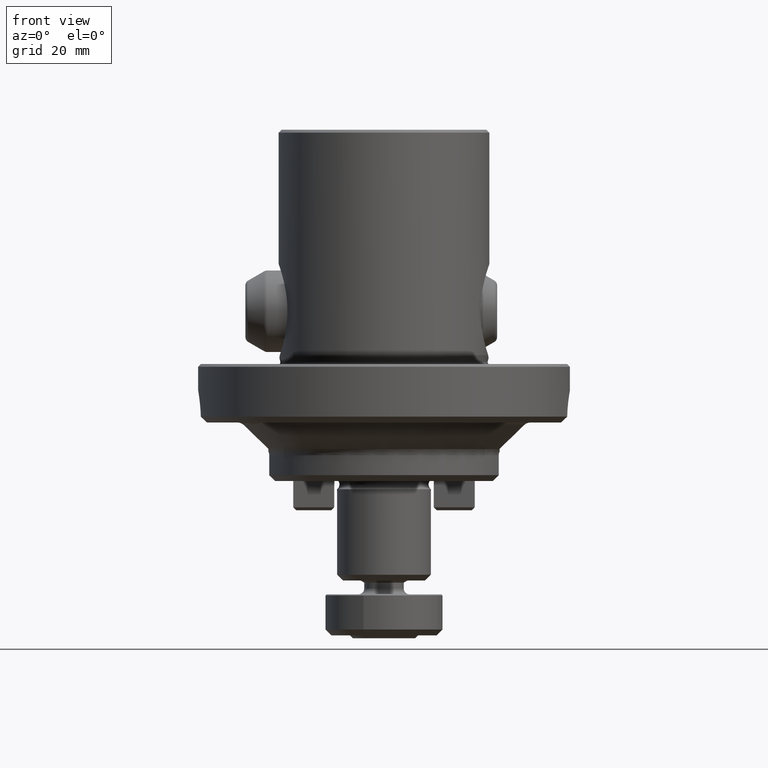
[diagram: clean part render]
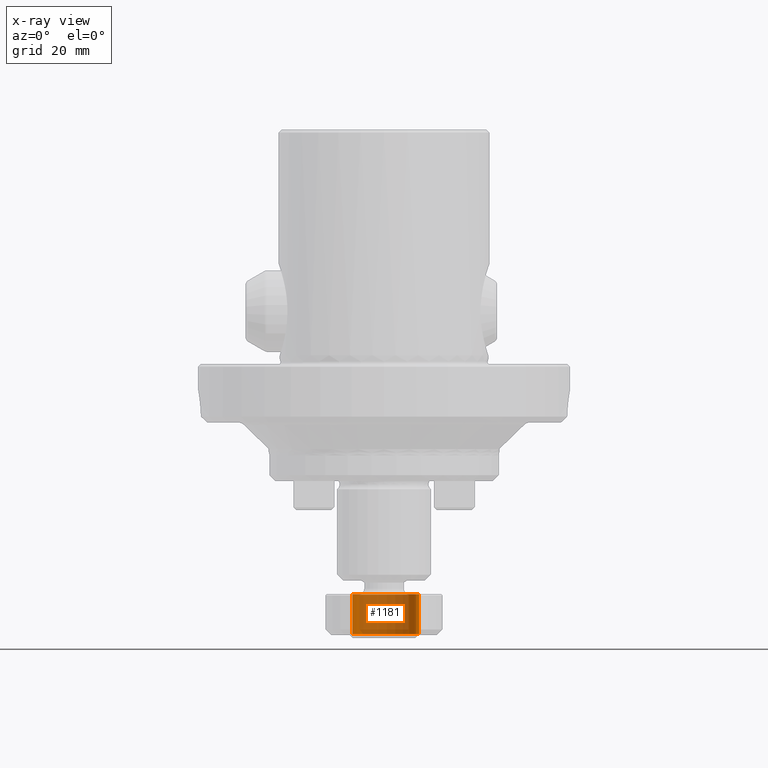
[diagram: x-ray — body ghosted, one internal face saturated and labeled with its STEP entity id]
A machine part, front view, then the same camera in x-ray: the body is ghosted and one INTERNAL B-rep face — a face not visible from any outside direction — is saturated and labeled: STEP entity #1181.
In plain terms, the highlighted cylindrical surface (edge-blend (fillet) strip) has radius 6 mm, axis along (0, 0, -1).
Its self-contained STEP definition (entity closure, byte-faithful):
#1181=ADVANCED_FACE('NONE',(#3402),#3403,.T.);
#1491=VERTEX_POINT('NONE',#3744);
#1591=EDGE_CURVE('NONE',#1491,#3021,#3851,.T.);
#2009=EDGE_CURVE('NONE',#3021,#2173,#4320,.T.);
#2125=EDGE_CURVE('NONE',#2271,#1491,#4454,.T.);
#2173=VERTEX_POINT('NONE',#4506);
#2271=VERTEX_POINT('NONE',#4614);
#3021=VERTEX_POINT('NONE',#5448);
#3327=EDGE_CURVE('NONE',#2271,#2173,#5795,.T.);
#3402=FACE_OUTER_BOUND('',#5878,.T.);
#3403=CYLINDRICAL_SURFACE('',#5879,6.0);
#3744=CARTESIAN_POINT('',(5.41361563912286,-2.58703801901797,-39.3534065806925));
#3851=LINE('',#6724,#6725);
#4320=CIRCLE('',#7610,6.0);
#4454=CIRCLE('',#7830,6.0);
#4506=CARTESIAN_POINT('',(-5.41361563912286,2.58703801901797,-46.1534065806925));
#4614=CARTESIAN_POINT('',(-5.41361563912286,2.58703801901796,-39.3534065806925));
#5448=CARTESIAN_POINT('',(5.41361563912286,-2.58703801901797,-46.1534065806925));
#5795=LINE('',#10159,#10160);
#5878=EDGE_LOOP('',(#10242,#10243,#10244,#10245));
#5879=AXIS2_PLACEMENT_3D('',#10246,#10247,#10248);
#6724=CARTESIAN_POINT('',(5.41361563912286,-2.58703801901797,-46.8534065806925));
#6725=VECTOR('',#10711,1000.0);
#7610=AXIS2_PLACEMENT_3D('',#11280,#11281,#11282);
#7830=AXIS2_PLACEMENT_3D('',#11476,#11477,#11478);
#10159=CARTESIAN_POINT('',(-5.41361563912286,2.58703801901797,-46.8534065806925));
#10160=VECTOR('',#13106,1000.0);
#10242=ORIENTED_EDGE('',*,*,#3327,.F.);
#10243=ORIENTED_EDGE('',*,*,#2125,.T.);
#10244=ORIENTED_EDGE('',*,*,#1591,.T.);
#10245=ORIENTED_EDGE('',*,*,#2009,.T.);
#10246=CARTESIAN_POINT('',(-3.47356815196123E-016,-2.29274864399236E-015,-46.8534065806925));
#10247=DIRECTION('',(1.24372766737199E-031,5.72641808448075E-033,-1.0));
#10248=DIRECTION('',(0.902269273187143,-0.431173003169661,1.09748648965356E-031));
#10711=DIRECTION('',(4.93038065763133E-032,4.16000867987643E-032,-1.0));
#11280=CARTESIAN_POINT('',(-3.47356815196124E-016,-2.29274864399236E-015,-46.1534065806925));
#11281=DIRECTION('',(-1.24372766737199E-031,-5.72641808448075E-033,1.0));
#11282=DIRECTION('',(0.902269273187143,-0.431173003169661,1.09748648965356E-031));
#11476=CARTESIAN_POINT('',(-3.47356815196124E-016,-2.29274864399236E-015,-39.3534065806925));
#11477=DIRECTION('',(1.24372766737199E-031,5.72641808448075E-033,-1.0));
#11478=DIRECTION('',(0.902269273187143,-0.431173003169661,1.09748648965356E-031));
#13106=DIRECTION('',(4.93038065763133E-032,4.16000867987643E-032,-1.0));